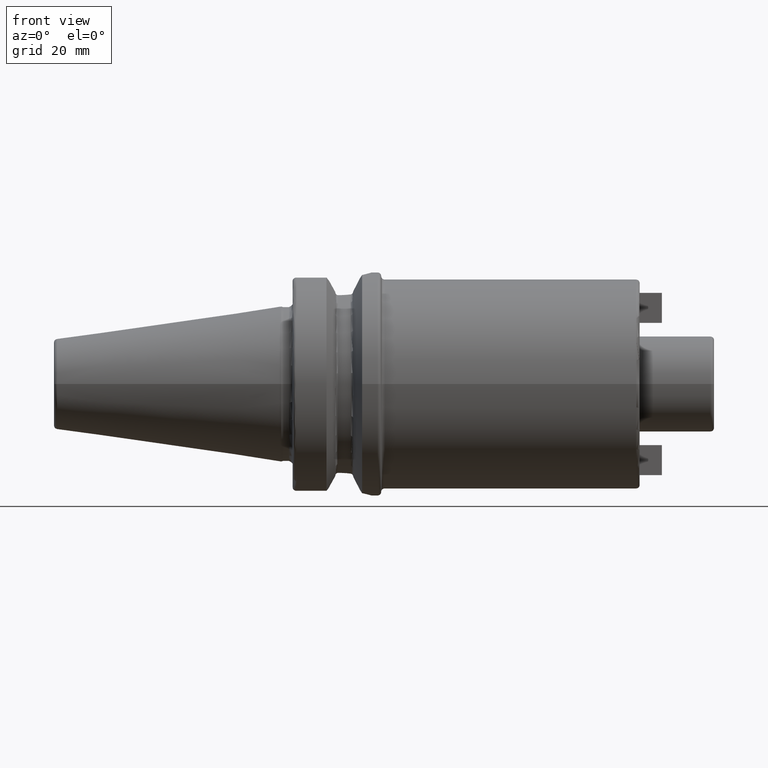
[diagram: clean part render]
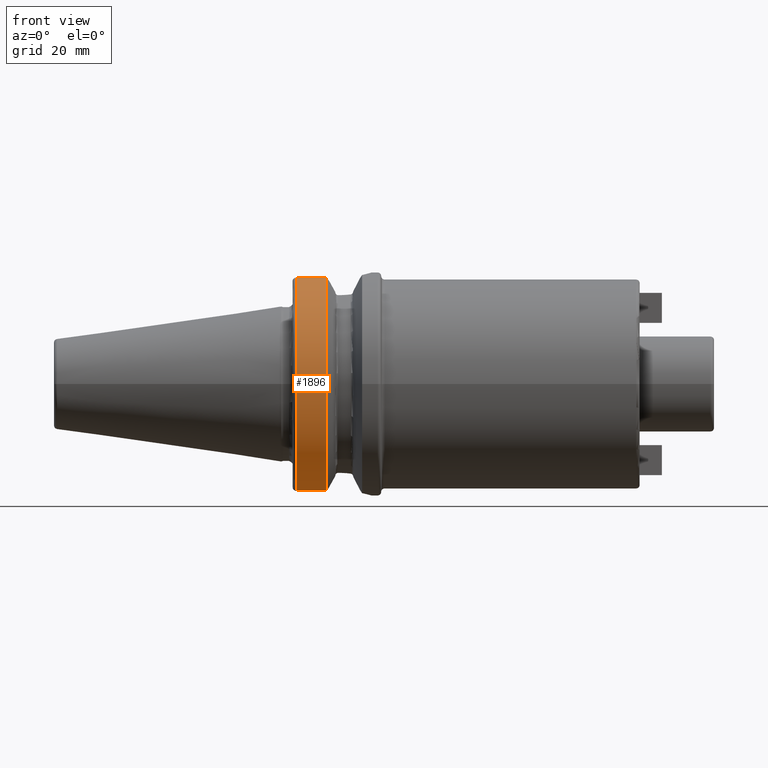
[diagram: same view with one face highlighted and labeled with its STEP entity id]
A machine part, front view. The second image highlights one B-rep face of the part: STEP entity #1896.
In plain terms, the highlighted cylindrical surface (partial cylindrical patch) has radius 31.4875 mm, axis along (1, 0, 0).
Its self-contained STEP definition (entity closure, byte-faithful):
#210=CARTESIAN_POINT('',(1.157272253103E1,0.E0,0.E0));
#211=DIRECTION('',(1.E0,0.E0,0.E0));
#212=DIRECTION('',(0.E0,-2.983189831898E-1,9.544662300305E-1));
#213=AXIS2_PLACEMENT_3D('',#210,#211,#212);
#215=DIRECTION('',(9.999999999998E-1,-3.572441507671E-7,4.802508939409E-7));
#216=VECTOR('',#215,8.572722533299E0);
#217=CARTESIAN_POINT('',(2.999999997734E0,-9.052776400559E0,-3.015808496187E1));
#218=LINE('',#217,#216);
#219=CARTESIAN_POINT('',(3.E0,0.E0,0.E0));
#220=DIRECTION('',(-1.E0,0.E0,0.E0));
#221=DIRECTION('',(0.E0,-2.875039130802E-1,-9.577794631143E-1));
#222=AXIS2_PLACEMENT_3D('',#219,#220,#221);
#224=DIRECTION('',(-9.999999999911E-1,2.496639374553E-6,3.395432034657E-6));
#225=VECTOR('',#224,8.572722551500E0);
#226=CARTESIAN_POINT('',(1.157272253103E1,-9.393318983190E0,3.005375541808E1));
#227=LINE('',#226,#225);
#606=CARTESIAN_POINT('',(2.999999997734E0,-9.052776400559E0,-3.015808496187E1));
#1460=CARTESIAN_POINT('',(1.157272253103E1,-9.393318983190E0,3.005375541808E1));
#1461=CARTESIAN_POINT('',(1.157272253103E1,-9.052779463114E0,
-3.015808084481E1));
#1462=VERTEX_POINT('',#1460);
#1463=VERTEX_POINT('',#1461);
#1476=CARTESIAN_POINT('',(3.E0,-9.393347656107E0,3.005374645633E1));
#1477=VERTEX_POINT('',#1476);
#1498=VERTEX_POINT('',#606);
#1882=CARTESIAN_POINT('',(-7.002E1,0.E0,0.E0));
#1883=DIRECTION('',(1.E0,0.E0,0.E0));
#1884=DIRECTION('',(0.E0,-1.E0,0.E0));
#1885=AXIS2_PLACEMENT_3D('',#1882,#1883,#1884);
#1886=CYLINDRICAL_SURFACE('',#1885,3.14875E1);
#1887=ORIENTED_EDGE('',*,*,#1873,.T.);
#1889=ORIENTED_EDGE('',*,*,#1888,.F.);
#1891=ORIENTED_EDGE('',*,*,#1890,.T.);
#1893=ORIENTED_EDGE('',*,*,#1892,.F.);
#1894=EDGE_LOOP('',(#1887,#1889,#1891,#1893));
#1895=FACE_OUTER_BOUND('',#1894,.F.);
#1896=ADVANCED_FACE('',(#1895),#1886,.T.);
#214=CIRCLE('',#213,3.14875E1);
#223=CIRCLE('',#222,3.14875E1);
#1873=EDGE_CURVE('',#1462,#1463,#214,.T.);
#1888=EDGE_CURVE('',#1498,#1463,#218,.T.);
#1890=EDGE_CURVE('',#1498,#1477,#223,.T.);
#1892=EDGE_CURVE('',#1462,#1477,#227,.T.);